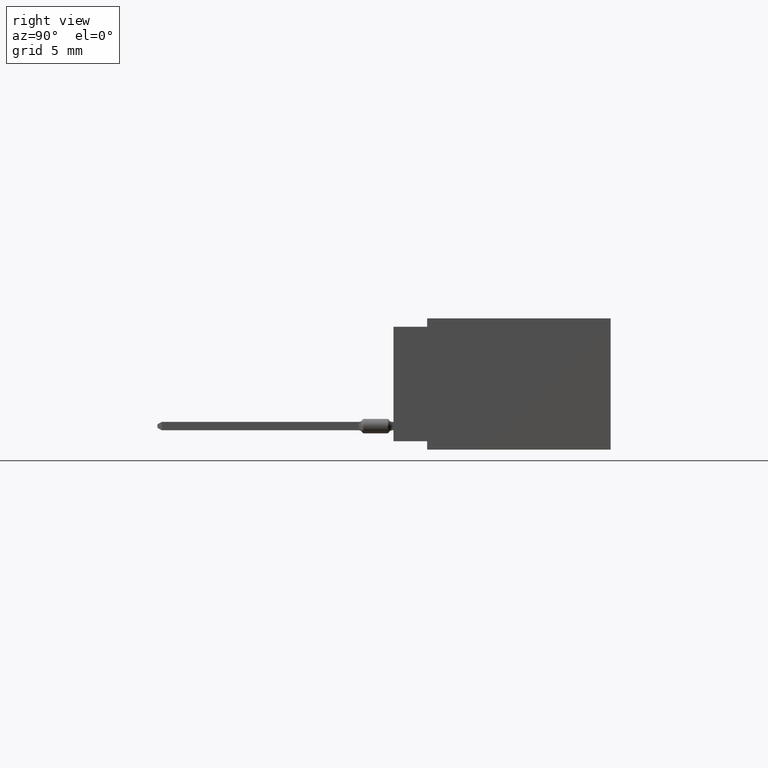
[diagram: clean part render]
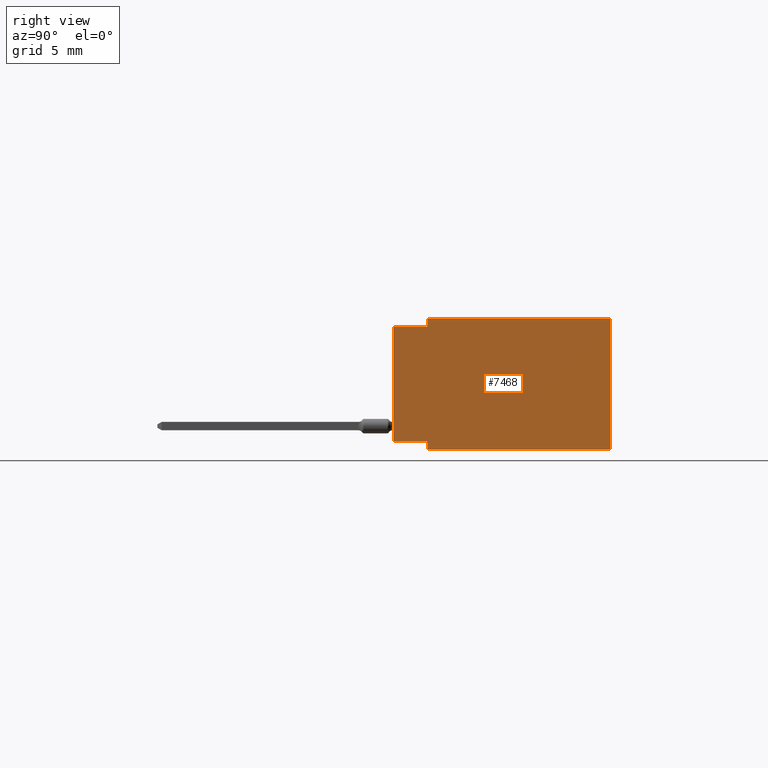
[diagram: same view with one face highlighted and labeled with its STEP entity id]
A machine part, right view. The second image highlights one B-rep face of the part: STEP entity #7468.
In plain terms, the highlighted planar face has unit normal (-1, 0, 0).
Its self-contained STEP definition (entity closure, byte-faithful):
#35 = EDGE_CURVE ( 'NONE', #9903, #12406, #17123, .T. ) ;
#142 = VECTOR ( 'NONE', #10486, 39.37007874015748143 ) ;
#474 = ORIENTED_EDGE ( 'NONE', *, *, #20083, .F. ) ;
#801 = CARTESIAN_POINT ( 'NONE',  ( 1.660000000000000142, 0.6449999999999999067, 0.0000000000000000000 ) ) ;
#900 = CARTESIAN_POINT ( 'NONE',  ( 1.660000000000000142, 0.1000000000000000056, 0.0000000000000000000 ) ) ;
#998 = VECTOR ( 'NONE', #19681, 39.37007874015748143 ) ;
#1002 = CARTESIAN_POINT ( 'NONE',  ( 1.660000000000000142, 0.1000000000000000056, -0.02500000000000000486 ) ) ;
#1061 = CARTESIAN_POINT ( 'NONE',  ( 1.660000000000000142, 0.0000000000000000000, -0.02500000000000000486 ) ) ;
#1106 = LINE ( 'NONE', #900, #16471 ) ;
#2531 = EDGE_CURVE ( 'NONE', #11761, #9903, #11177, .T. ) ;
#2547 = EDGE_CURVE ( 'NONE', #12406, #14097, #16191, .T. ) ;
#3483 = DIRECTION ( 'NONE',  ( -0.0000000000000000000, -1.000000000000000000, -0.0000000000000000000 ) ) ;
#3738 = VECTOR ( 'NONE', #13626, 39.37007874015748143 ) ;
#4099 = DIRECTION ( 'NONE',  ( 0.0000000000000000000, 0.0000000000000000000, -1.000000000000000000 ) ) ;
#4220 = CARTESIAN_POINT ( 'NONE',  ( 1.660000000000000142, 0.6449999999999999067, 0.0000000000000000000 ) ) ;
#4320 = DIRECTION ( 'NONE',  ( 0.0000000000000000000, 0.0000000000000000000, 1.000000000000000000 ) ) ;
#4639 = DIRECTION ( 'NONE',  ( 0.0000000000000000000, 0.0000000000000000000, -1.000000000000000000 ) ) ;
#5070 = CARTESIAN_POINT ( 'NONE',  ( 1.660000000000000142, 0.6449999999999999067, -0.3900000000000000133 ) ) ;
#5913 = PLANE ( 'NONE',  #18618 ) ;
#6228 = VERTEX_POINT ( 'NONE', #10788 ) ;
#6430 = VECTOR ( 'NONE', #4639, 39.37007874015748143 ) ;
#6906 = ORIENTED_EDGE ( 'NONE', *, *, #9592, .T. ) ;
#7119 = CARTESIAN_POINT ( 'NONE',  ( 1.660000000000000142, 0.1000000000000000056, -0.3649999999999999911 ) ) ;
#7468 = ADVANCED_FACE ( 'NONE', ( #17090 ), #5913, .F. ) ;
#9507 = EDGE_CURVE ( 'NONE', #19925, #14097, #19437, .T. ) ;
#9589 = CARTESIAN_POINT ( 'NONE',  ( 1.660000000000000142, 0.1000000000000000056, -0.3900000000000000133 ) ) ;
#9592 = EDGE_CURVE ( 'NONE', #6228, #12527, #18261, .T. ) ;
#9734 = ORIENTED_EDGE ( 'NONE', *, *, #13296, .T. ) ;
#9903 = VERTEX_POINT ( 'NONE', #17711 ) ;
#10224 = CARTESIAN_POINT ( 'NONE',  ( 1.660000000000000142, 0.0000000000000000000, -0.3649999999999999911 ) ) ;
#10486 = DIRECTION ( 'NONE',  ( -0.0000000000000000000, -1.000000000000000000, -0.0000000000000000000 ) ) ;
#10545 = ORIENTED_EDGE ( 'NONE', *, *, #2547, .T. ) ;
#10788 = CARTESIAN_POINT ( 'NONE',  ( 1.660000000000000142, 0.6449999999999999067, 0.0000000000000000000 ) ) ;
#11177 = LINE ( 'NONE', #14377, #998 ) ;
#11361 = CARTESIAN_POINT ( 'NONE',  ( 1.660000000000000142, 0.6449999999999999067, -0.3900000000000000133 ) ) ;
#11761 = VERTEX_POINT ( 'NONE', #1061 ) ;
#12204 = CARTESIAN_POINT ( 'NONE',  ( 1.660000000000000142, 0.1000000000000000056, -0.3900000000000000133 ) ) ;
#12403 = LINE ( 'NONE', #18884, #6430 ) ;
#12406 = VERTEX_POINT ( 'NONE', #7119 ) ;
#12527 = VERTEX_POINT ( 'NONE', #14033 ) ;
#12680 = DIRECTION ( 'NONE',  ( -0.0000000000000000000, -1.000000000000000000, -0.0000000000000000000 ) ) ;
#12968 = ORIENTED_EDGE ( 'NONE', *, *, #2531, .T. ) ;
#13296 = EDGE_CURVE ( 'NONE', #18561, #11761, #17571, .T. ) ;
#13377 = VECTOR ( 'NONE', #3483, 39.37007874015748143 ) ;
#13626 = DIRECTION ( 'NONE',  ( 0.0000000000000000000, 1.000000000000000000, 0.0000000000000000000 ) ) ;
#14033 = CARTESIAN_POINT ( 'NONE',  ( 1.660000000000000142, 0.1000000000000000056, 0.0000000000000000000 ) ) ;
#14097 = VERTEX_POINT ( 'NONE', #12204 ) ;
#14377 = CARTESIAN_POINT ( 'NONE',  ( 1.660000000000000142, 0.0000000000000000000, 0.0000000000000000000 ) ) ;
#15220 = ORIENTED_EDGE ( 'NONE', *, *, #35, .T. ) ;
#15364 = EDGE_LOOP ( 'NONE', ( #18452, #9734, #12968, #15220, #10545, #16289, #474, #6906 ) ) ;
#15818 = EDGE_CURVE ( 'NONE', #12527, #18561, #1106, .T. ) ;
#15872 = CARTESIAN_POINT ( 'NONE',  ( 1.660000000000000142, 0.0000000000000000000, -0.02500000000000000486 ) ) ;
#16191 = LINE ( 'NONE', #9589, #19702 ) ;
#16289 = ORIENTED_EDGE ( 'NONE', *, *, #9507, .F. ) ;
#16400 = DIRECTION ( 'NONE',  ( -0.0000000000000000000, -0.0000000000000000000, -1.000000000000000000 ) ) ;
#16471 = VECTOR ( 'NONE', #4099, 39.37007874015748143 ) ;
#17090 = FACE_OUTER_BOUND ( 'NONE', #15364, .T. ) ;
#17123 = LINE ( 'NONE', #10224, #3738 ) ;
#17198 = DIRECTION ( 'NONE',  ( -1.000000000000000000, 0.0000000000000000000, 0.0000000000000000000 ) ) ;
#17571 = LINE ( 'NONE', #15872, #18155 ) ;
#17711 = CARTESIAN_POINT ( 'NONE',  ( 1.660000000000000142, 0.0000000000000000000, -0.3649999999999999911 ) ) ;
#18155 = VECTOR ( 'NONE', #12680, 39.37007874015748143 ) ;
#18261 = LINE ( 'NONE', #801, #142 ) ;
#18452 = ORIENTED_EDGE ( 'NONE', *, *, #15818, .T. ) ;
#18561 = VERTEX_POINT ( 'NONE', #1002 ) ;
#18618 = AXIS2_PLACEMENT_3D ( 'NONE', #4220, #17198, #4320 ) ;
#18884 = CARTESIAN_POINT ( 'NONE',  ( 1.660000000000000142, 0.6449999999999999067, 0.0000000000000000000 ) ) ;
#19437 = LINE ( 'NONE', #5070, #13377 ) ;
#19681 = DIRECTION ( 'NONE',  ( 0.0000000000000000000, 0.0000000000000000000, -1.000000000000000000 ) ) ;
#19702 = VECTOR ( 'NONE', #16400, 39.37007874015748143 ) ;
#19925 = VERTEX_POINT ( 'NONE', #11361 ) ;
#20083 = EDGE_CURVE ( 'NONE', #6228, #19925, #12403, .T. ) ;